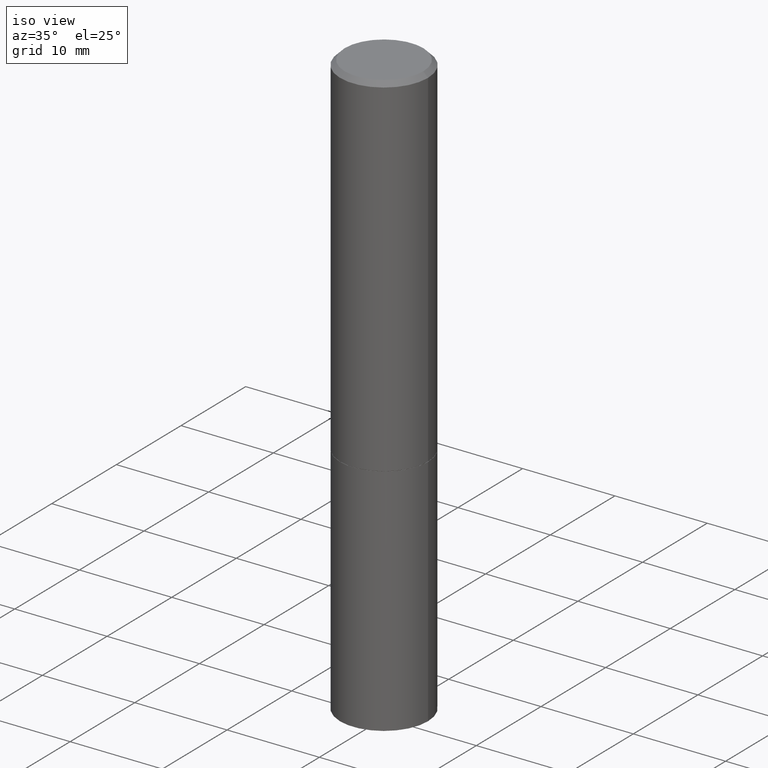
[diagram: clean part render]
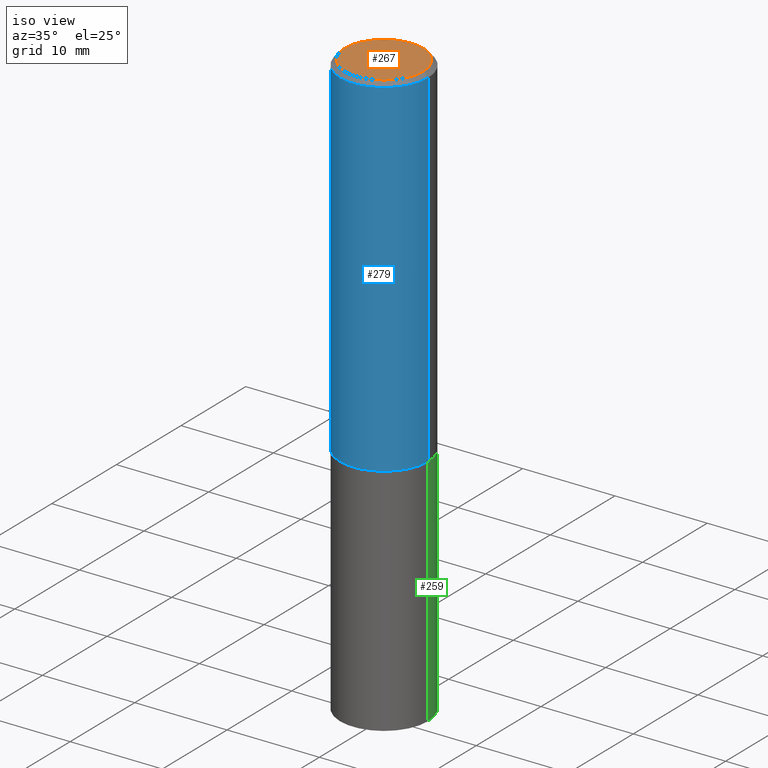
[diagram: same view with three faces highlighted in distinct colors, each labeled with its STEP entity id]
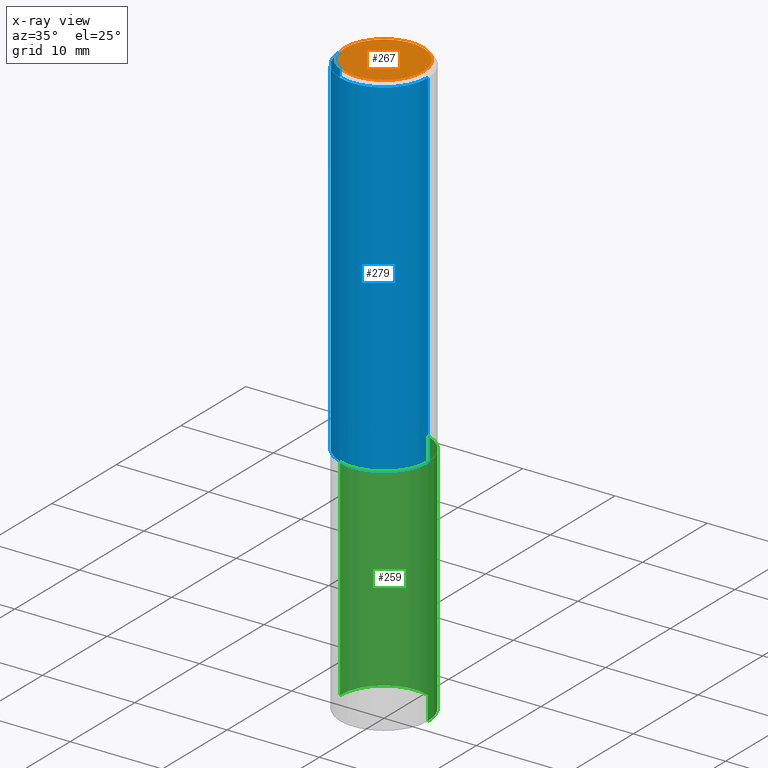
[diagram: x-ray of the same camera — body ghosted, the three highlighted faces saturated]
A machine part, iso view with three faces highlighted in distinct colors.
The next image is the same camera in x-ray (body ghosted, the three faces saturated) — at least one of them is partly hidden behind the body in this view.
Their STEP definitions:

[orange] entity #267 — the highlighted planar face has unit normal (0, -0, -1).
#6 = CARTESIAN_POINT ( 'NONE',  ( 0.000000000000000000, 0.000000000000000000, 0.000000000000000000 ) ) ;
#43 = DIRECTION ( 'NONE',  ( 2.438088387897960049E-29, -3.491481338843145188E-15, -1.000000000000000000 ) ) ;
#60 = DIRECTION ( 'NONE',  ( 1.000000000000000000, -6.982962677686266711E-15, 4.876176775795936914E-29 ) ) ;
#84 = AXIS2_PLACEMENT_3D ( 'NONE', #85, #280, #86 ) ;
#85 = CARTESIAN_POINT ( 'NONE',  ( 0.000000000000000000, 0.000000000000000000, 0.000000000000000000 ) ) ;
#86 = DIRECTION ( 'NONE',  ( 1.000000000000000000, -6.982962677686266711E-15, 4.876176775795936914E-29 ) ) ;
#90 = CARTESIAN_POINT ( 'NONE',  ( 1.169646248512448412E-15, 0.1674999999999998157, -5.848231242562262767E-16 ) ) ;
#97 = CARTESIAN_POINT ( 'NONE',  ( -0.1674999999999998157, 1.204561061900879272E-15, -8.301862719484101980E-30 ) ) ;
#113 = DIRECTION ( 'NONE',  ( -2.445468806185136597E-29, 3.491481338843145583E-15, 1.000000000000000000 ) ) ;
#129 = ORIENTED_EDGE ( 'NONE', *, *, #169, .T. ) ;
#136 = ORIENTED_EDGE ( 'NONE', *, *, #200, .T. ) ;
#167 = AXIS2_PLACEMENT_3D ( 'NONE', #90, #43, #186 ) ;
#169 = EDGE_CURVE ( 'NONE', #187, #355, #325, .T. ) ;
#177 = FACE_OUTER_BOUND ( 'NONE', #343, .T. ) ;
#186 = DIRECTION ( 'NONE',  ( -1.000000000000000000, 6.982962677686265922E-15, -4.876176775795935793E-29 ) ) ;
#187 = VERTEX_POINT ( 'NONE', #339 ) ;
#200 = EDGE_CURVE ( 'NONE', #355, #187, #275, .T. ) ;
#267 = ADVANCED_FACE ( 'NONE', ( #177 ), #284, .F. ) ;
#275 = CIRCLE ( 'NONE', #84, 0.1674999999999998157 ) ;
#280 = DIRECTION ( 'NONE',  ( -2.445468806185136597E-29, 3.491481338843145583E-15, 1.000000000000000000 ) ) ;
#284 = PLANE ( 'NONE',  #167 ) ;
#309 = AXIS2_PLACEMENT_3D ( 'NONE', #6, #113, #60 ) ;
#325 = CIRCLE ( 'NONE', #309, 0.1674999999999998157 ) ;
#339 = CARTESIAN_POINT ( 'NONE',  ( 0.1674999999999998157, -1.252653207992877105E-15, 8.469775550109232378E-30 ) ) ;
#343 = EDGE_LOOP ( 'NONE', ( #136, #129 ) ) ;
#355 = VERTEX_POINT ( 'NONE', #97 ) ;

[blue] entity #279 — the highlighted cylindrical surface (partial cylindrical patch) has radius 4.7625 mm, axis along (-0, 0, 1).
#9 = CIRCLE ( 'NONE', #154, 0.1875000000000000278 ) ;
#11 = CARTESIAN_POINT ( 'NONE',  ( 0.000000000000000000, 0.000000000000000000, 0.000000000000000000 ) ) ;
#15 = DIRECTION ( 'NONE',  ( -2.445468806185136597E-29, 3.491481338843145583E-15, 1.000000000000000000 ) ) ;
#25 = ORIENTED_EDGE ( 'NONE', *, *, #352, .T. ) ;
#31 = AXIS2_PLACEMENT_3D ( 'NONE', #115, #87, #276 ) ;
#34 = LINE ( 'NONE', #345, #228 ) ;
#47 = VERTEX_POINT ( 'NONE', #361 ) ;
#75 = EDGE_LOOP ( 'NONE', ( #321, #25, #163, #317 ) ) ;
#87 = DIRECTION ( 'NONE',  ( -2.445468806185136597E-29, 3.491481338843145583E-15, 1.000000000000000000 ) ) ;
#115 = CARTESIAN_POINT ( 'NONE',  ( 4.890937612370283668E-31, -6.982962677686305168E-17, -0.02000000000000004205 ) ) ;
#118 = LINE ( 'NONE', #262, #244 ) ;
#121 = DIRECTION ( 'NONE',  ( -2.445468806185136877E-29, 3.491481338843145188E-15, 1.000000000000000000 ) ) ;
#145 = CARTESIAN_POINT ( 'NONE',  ( 0.1875000000000000278, -6.543036028992050967E-15, -1.499000000000000110 ) ) ;
#152 = VERTEX_POINT ( 'NONE', #223 ) ;
#154 = AXIS2_PLACEMENT_3D ( 'NONE', #235, #15, #354 ) ;
#156 = CYLINDRICAL_SURFACE ( 'NONE', #330, 0.1874999999999999167 ) ;
#157 = FACE_OUTER_BOUND ( 'NONE', #75, .T. ) ;
#162 = DIRECTION ( 'NONE',  ( -2.445468806185136877E-29, 3.491481338843145188E-15, 1.000000000000000000 ) ) ;
#163 = ORIENTED_EDGE ( 'NONE', *, *, #346, .T. ) ;
#189 = DIRECTION ( 'NONE',  ( 1.000000000000000000, -6.982962677686265922E-15, 4.876176775795935793E-29 ) ) ;
#195 = VERTEX_POINT ( 'NONE', #145 ) ;
#209 = CARTESIAN_POINT ( 'NONE',  ( -0.1874999999999998057, 1.239475875289310527E-15, -0.02000000000000004205 ) ) ;
#223 = CARTESIAN_POINT ( 'NONE',  ( 0.1874999999999998057, -1.356173001359023888E-15, -0.02000000000000004205 ) ) ;
#224 = CIRCLE ( 'NONE', #31, 0.1874999999999998057 ) ;
#228 = VECTOR ( 'NONE', #121, 39.37007874015748143 ) ;
#232 = EDGE_CURVE ( 'NONE', #326, #152, #224, .T. ) ;
#235 = CARTESIAN_POINT ( 'NONE',  ( 3.665757740471519853E-29, -5.233730526925875958E-15, -1.499000000000000110 ) ) ;
#244 = VECTOR ( 'NONE', #162, 39.37007874015748143 ) ;
#262 = CARTESIAN_POINT ( 'NONE',  ( 0.1874999999999999167, -1.309305502066174219E-15, 9.142831454617375408E-30 ) ) ;
#276 = DIRECTION ( 'NONE',  ( 1.000000000000000000, -6.982962677686266711E-15, 0.000000000000000000 ) ) ;
#279 = ADVANCED_FACE ( 'NONE', ( #157 ), #156, .T. ) ;
#317 = ORIENTED_EDGE ( 'NONE', *, *, #232, .F. ) ;
#320 = DIRECTION ( 'NONE',  ( -2.445468806185136597E-29, 3.491481338843145583E-15, 1.000000000000000000 ) ) ;
#321 = ORIENTED_EDGE ( 'NONE', *, *, #333, .F. ) ;
#326 = VERTEX_POINT ( 'NONE', #209 ) ;
#330 = AXIS2_PLACEMENT_3D ( 'NONE', #11, #320, #189 ) ;
#333 = EDGE_CURVE ( 'NONE', #47, #326, #34, .T. ) ;
#345 = CARTESIAN_POINT ( 'NONE',  ( -0.1874999999999999167, 1.332267629550187257E-15, -9.223003294227943787E-30 ) ) ;
#346 = EDGE_CURVE ( 'NONE', #195, #152, #118, .T. ) ;
#352 = EDGE_CURVE ( 'NONE', #47, #195, #9, .T. ) ;
#354 = DIRECTION ( 'NONE',  ( 1.000000000000000000, -6.982962677686266711E-15, 0.000000000000000000 ) ) ;
#361 = CARTESIAN_POINT ( 'NONE',  ( -0.1874999999999999722, -1.319512447301180399E-15, -1.499000000000000110 ) ) ;

[green] entity #259 — the highlighted cylindrical surface (partial cylindrical patch) has radius 4.7625 mm, axis along (-0, 0, 1).
#2 = VECTOR ( 'NONE', #286, 39.37007874015748143 ) ;
#3 = DIRECTION ( 'NONE',  ( -2.445468806185136597E-29, 3.491481338843145583E-15, 1.000000000000000000 ) ) ;
#20 = VERTEX_POINT ( 'NONE', #285 ) ;
#32 = CARTESIAN_POINT ( 'NONE',  ( 0.1875000000000000278, -6.546527510330893974E-15, -1.500000000000000222 ) ) ;
#39 = LINE ( 'NONE', #95, #2 ) ;
#61 = FACE_OUTER_BOUND ( 'NONE', #350, .T. ) ;
#69 = ORIENTED_EDGE ( 'NONE', *, *, #272, .F. ) ;
#95 = CARTESIAN_POINT ( 'NONE',  ( 0.1875000000000000278, -1.309305502066175008E-15, 9.142831454617381013E-30 ) ) ;
#101 = VECTOR ( 'NONE', #246, 39.37007874015748143 ) ;
#112 = CARTESIAN_POINT ( 'NONE',  ( 6.113672015462842613E-29, -8.728703347107864943E-15, -2.500000000000000000 ) ) ;
#117 = DIRECTION ( 'NONE',  ( 1.000000000000000000, -6.982962677686266711E-15, 0.000000000000000000 ) ) ;
#120 = CARTESIAN_POINT ( 'NONE',  ( 0.1875000000000000278, -1.003800884917403995E-14, -2.500000000000000000 ) ) ;
#143 = EDGE_CURVE ( 'NONE', #252, #20, #253, .T. ) ;
#147 = AXIS2_PLACEMENT_3D ( 'NONE', #230, #179, #265 ) ;
#171 = CIRCLE ( 'NONE', #147, 0.1875000000000000278 ) ;
#173 = EDGE_CURVE ( 'NONE', #270, #252, #233, .T. ) ;
#175 = CARTESIAN_POINT ( 'NONE',  ( 0.000000000000000000, 0.000000000000000000, 0.000000000000000000 ) ) ;
#178 = DIRECTION ( 'NONE',  ( -2.445468806185136597E-29, 3.491481338843145583E-15, 1.000000000000000000 ) ) ;
#179 = DIRECTION ( 'NONE',  ( -2.445468806185136597E-29, 3.491481338843145583E-15, 1.000000000000000000 ) ) ;
#206 = CYLINDRICAL_SURFACE ( 'NONE', #318, 0.1875000000000000278 ) ;
#229 = CARTESIAN_POINT ( 'NONE',  ( -0.1875000000000000278, -5.650695048136103317E-15, -2.500000000000000000 ) ) ;
#230 = CARTESIAN_POINT ( 'NONE',  ( 3.668203209277704895E-29, -5.237222008264718177E-15, -1.500000000000000222 ) ) ;
#233 = CIRCLE ( 'NONE', #358, 0.1875000000000000278 ) ;
#246 = DIRECTION ( 'NONE',  ( -2.445468806185136877E-29, 3.491481338843145188E-15, 1.000000000000000000 ) ) ;
#249 = CARTESIAN_POINT ( 'NONE',  ( -0.1875000000000000278, 1.332267629550188046E-15, -9.223003294227947991E-30 ) ) ;
#252 = VERTEX_POINT ( 'NONE', #229 ) ;
#253 = LINE ( 'NONE', #249, #101 ) ;
#257 = ORIENTED_EDGE ( 'NONE', *, *, #351, .F. ) ;
#259 = ADVANCED_FACE ( 'NONE', ( #61 ), #206, .T. ) ;
#263 = VERTEX_POINT ( 'NONE', #32 ) ;
#265 = DIRECTION ( 'NONE',  ( 1.000000000000000000, -6.982962677686266711E-15, 0.000000000000000000 ) ) ;
#266 = ORIENTED_EDGE ( 'NONE', *, *, #173, .T. ) ;
#270 = VERTEX_POINT ( 'NONE', #120 ) ;
#272 = EDGE_CURVE ( 'NONE', #270, #263, #39, .T. ) ;
#281 = DIRECTION ( 'NONE',  ( 1.000000000000000000, -6.982962677686265922E-15, 4.876176775795935793E-29 ) ) ;
#285 = CARTESIAN_POINT ( 'NONE',  ( -0.1875000000000000278, -5.650695048136103317E-15, -1.500000000000000222 ) ) ;
#286 = DIRECTION ( 'NONE',  ( -2.445468806185136877E-29, 3.491481338843145188E-15, 1.000000000000000000 ) ) ;
#318 = AXIS2_PLACEMENT_3D ( 'NONE', #175, #178, #281 ) ;
#350 = EDGE_LOOP ( 'NONE', ( #266, #357, #257, #69 ) ) ;
#351 = EDGE_CURVE ( 'NONE', #263, #20, #171, .T. ) ;
#357 = ORIENTED_EDGE ( 'NONE', *, *, #143, .T. ) ;
#358 = AXIS2_PLACEMENT_3D ( 'NONE', #112, #3, #117 ) ;